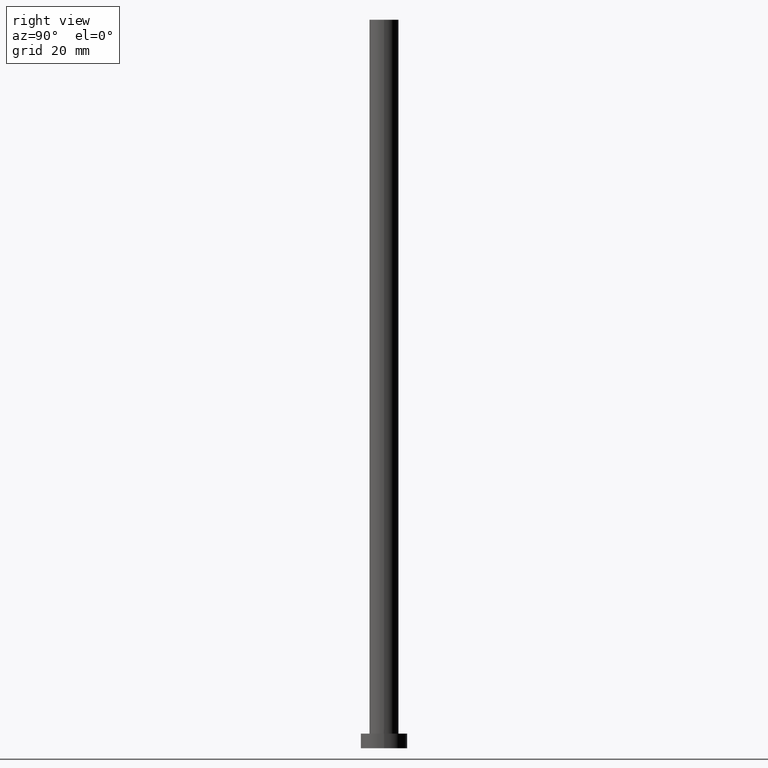
[diagram: clean part render]
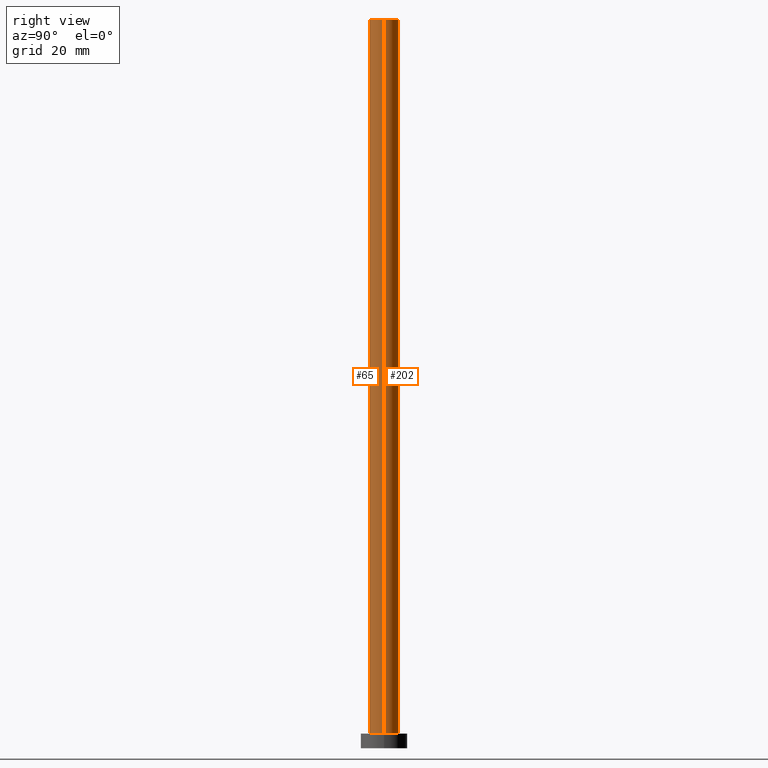
[diagram: same view with one multi-face feature highlighted, each face labeled with its STEP entity id]
A machine part, right view. The highlighted faces form ONE feature: a constant-radius fillet chain: 2 tangent blend faces with common blend radius 5 mm. The faces share edges in the B-rep.
Their STEP definitions:
[1] entity #202 (Cylinder):
#10 = DIRECTION ( 'NONE',  ( -0.000000000000000000, -0.000000000000000000, -1.000000000000000000 ) ) ;
#13 = DIRECTION ( 'NONE',  ( 0.000000000000000000, 0.000000000000000000, 1.000000000000000000 ) ) ;
#14 = CARTESIAN_POINT ( 'NONE',  ( 0.000000000000000000, 0.000000000000000000, 250.0000000000000000 ) ) ;
#21 = VERTEX_POINT ( 'NONE', #106 ) ;
#27 = ORIENTED_EDGE ( 'NONE', *, *, #205, .F. ) ;
#28 = CARTESIAN_POINT ( 'NONE',  ( 0.000000000000000000, 0.000000000000000000, 5.000000000000000000 ) ) ;
#30 = FACE_OUTER_BOUND ( 'NONE', #151, .T. ) ;
#32 = VECTOR ( 'NONE', #152, 1000.000000000000000 ) ;
#34 = CARTESIAN_POINT ( 'NONE',  ( -5.000000000000000000, 0.000000000000000000, 5.000000000000000000 ) ) ;
#35 = CARTESIAN_POINT ( 'NONE',  ( 0.000000000000000000, 0.000000000000000000, 250.0000000000000000 ) ) ;
#36 = AXIS2_PLACEMENT_3D ( 'NONE', #35, #13, #191 ) ;
#49 = CARTESIAN_POINT ( 'NONE',  ( 5.000000000000000000, 6.123233995736766282E-16, 5.000000000000000000 ) ) ;
#59 = ORIENTED_EDGE ( 'NONE', *, *, #198, .F. ) ;
#62 = AXIS2_PLACEMENT_3D ( 'NONE', #28, #110, #250 ) ;
#70 = DIRECTION ( 'NONE',  ( -0.000000000000000000, -0.000000000000000000, -1.000000000000000000 ) ) ;
#76 = CIRCLE ( 'NONE', #36, 5.000000000000000000 ) ;
#81 = ORIENTED_EDGE ( 'NONE', *, *, #230, .T. ) ;
#95 = CARTESIAN_POINT ( 'NONE',  ( -5.000000000000000000, 0.000000000000000000, 250.0000000000000000 ) ) ;
#101 = VECTOR ( 'NONE', #10, 1000.000000000000000 ) ;
#102 = VERTEX_POINT ( 'NONE', #95 ) ;
#106 = CARTESIAN_POINT ( 'NONE',  ( 5.000000000000000000, 6.123233995736766282E-16, 250.0000000000000000 ) ) ;
#110 = DIRECTION ( 'NONE',  ( 0.000000000000000000, 0.000000000000000000, 1.000000000000000000 ) ) ;
#122 = VERTEX_POINT ( 'NONE', #49 ) ;
#136 = CYLINDRICAL_SURFACE ( 'NONE', #149, 5.000000000000000000 ) ;
#149 = AXIS2_PLACEMENT_3D ( 'NONE', #14, #70, #172 ) ;
#151 = EDGE_LOOP ( 'NONE', ( #59, #207, #81, #27 ) ) ;
#152 = DIRECTION ( 'NONE',  ( -0.000000000000000000, -0.000000000000000000, -1.000000000000000000 ) ) ;
#172 = DIRECTION ( 'NONE',  ( -1.000000000000000000, 0.000000000000000000, 0.000000000000000000 ) ) ;
#173 = CARTESIAN_POINT ( 'NONE',  ( -5.000000000000000000, 0.000000000000000000, 250.0000000000000000 ) ) ;
#178 = CIRCLE ( 'NONE', #62, 5.000000000000000000 ) ;
#180 = VERTEX_POINT ( 'NONE', #34 ) ;
#191 = DIRECTION ( 'NONE',  ( 1.000000000000000000, 0.000000000000000000, 0.000000000000000000 ) ) ;
#198 = EDGE_CURVE ( 'NONE', #21, #102, #76, .T. ) ;
#202 = ADVANCED_FACE ( 'NONE', ( #30 ), #136, .T. ) ;
#205 = EDGE_CURVE ( 'NONE', #102, #180, #247, .T. ) ;
#207 = ORIENTED_EDGE ( 'NONE', *, *, #209, .T. ) ;
#209 = EDGE_CURVE ( 'NONE', #21, #122, #227, .T. ) ;
#227 = LINE ( 'NONE', #251, #101 ) ;
#230 = EDGE_CURVE ( 'NONE', #122, #180, #178, .T. ) ;
#247 = LINE ( 'NONE', #173, #32 ) ;
#250 = DIRECTION ( 'NONE',  ( 1.000000000000000000, 0.000000000000000000, 0.000000000000000000 ) ) ;
#251 = CARTESIAN_POINT ( 'NONE',  ( 5.000000000000000000, 6.123233995736766282E-16, 250.0000000000000000 ) ) ;
[2] entity #65 (Cylinder):
#8 = DIRECTION ( 'NONE',  ( -0.000000000000000000, -0.000000000000000000, -1.000000000000000000 ) ) ;
#10 = DIRECTION ( 'NONE',  ( -0.000000000000000000, -0.000000000000000000, -1.000000000000000000 ) ) ;
#21 = VERTEX_POINT ( 'NONE', #106 ) ;
#25 = EDGE_LOOP ( 'NONE', ( #168, #107, #43, #242 ) ) ;
#26 = FACE_OUTER_BOUND ( 'NONE', #25, .T. ) ;
#32 = VECTOR ( 'NONE', #152, 1000.000000000000000 ) ;
#34 = CARTESIAN_POINT ( 'NONE',  ( -5.000000000000000000, 0.000000000000000000, 5.000000000000000000 ) ) ;
#43 = ORIENTED_EDGE ( 'NONE', *, *, #205, .T. ) ;
#47 = EDGE_CURVE ( 'NONE', #102, #21, #222, .T. ) ;
#49 = CARTESIAN_POINT ( 'NONE',  ( 5.000000000000000000, 6.123233995736766282E-16, 5.000000000000000000 ) ) ;
#57 = CYLINDRICAL_SURFACE ( 'NONE', #105, 5.000000000000000000 ) ;
#65 = ADVANCED_FACE ( 'NONE', ( #26 ), #57, .T. ) ;
#66 = DIRECTION ( 'NONE',  ( 0.000000000000000000, 0.000000000000000000, 1.000000000000000000 ) ) ;
#69 = DIRECTION ( 'NONE',  ( 1.000000000000000000, 0.000000000000000000, 0.000000000000000000 ) ) ;
#87 = EDGE_CURVE ( 'NONE', #180, #122, #145, .T. ) ;
#88 = DIRECTION ( 'NONE',  ( 1.000000000000000000, 0.000000000000000000, 0.000000000000000000 ) ) ;
#95 = CARTESIAN_POINT ( 'NONE',  ( -5.000000000000000000, 0.000000000000000000, 250.0000000000000000 ) ) ;
#101 = VECTOR ( 'NONE', #10, 1000.000000000000000 ) ;
#102 = VERTEX_POINT ( 'NONE', #95 ) ;
#105 = AXIS2_PLACEMENT_3D ( 'NONE', #187, #8, #114 ) ;
#106 = CARTESIAN_POINT ( 'NONE',  ( 5.000000000000000000, 6.123233995736766282E-16, 250.0000000000000000 ) ) ;
#107 = ORIENTED_EDGE ( 'NONE', *, *, #47, .F. ) ;
#109 = AXIS2_PLACEMENT_3D ( 'NONE', #182, #240, #88 ) ;
#114 = DIRECTION ( 'NONE',  ( -1.000000000000000000, 0.000000000000000000, 0.000000000000000000 ) ) ;
#122 = VERTEX_POINT ( 'NONE', #49 ) ;
#145 = CIRCLE ( 'NONE', #177, 5.000000000000000000 ) ;
#152 = DIRECTION ( 'NONE',  ( -0.000000000000000000, -0.000000000000000000, -1.000000000000000000 ) ) ;
#156 = CARTESIAN_POINT ( 'NONE',  ( 0.000000000000000000, 0.000000000000000000, 5.000000000000000000 ) ) ;
#168 = ORIENTED_EDGE ( 'NONE', *, *, #209, .F. ) ;
#173 = CARTESIAN_POINT ( 'NONE',  ( -5.000000000000000000, 0.000000000000000000, 250.0000000000000000 ) ) ;
#177 = AXIS2_PLACEMENT_3D ( 'NONE', #156, #66, #69 ) ;
#180 = VERTEX_POINT ( 'NONE', #34 ) ;
#182 = CARTESIAN_POINT ( 'NONE',  ( 0.000000000000000000, 0.000000000000000000, 250.0000000000000000 ) ) ;
#187 = CARTESIAN_POINT ( 'NONE',  ( 0.000000000000000000, 0.000000000000000000, 250.0000000000000000 ) ) ;
#205 = EDGE_CURVE ( 'NONE', #102, #180, #247, .T. ) ;
#209 = EDGE_CURVE ( 'NONE', #21, #122, #227, .T. ) ;
#222 = CIRCLE ( 'NONE', #109, 5.000000000000000000 ) ;
#227 = LINE ( 'NONE', #251, #101 ) ;
#240 = DIRECTION ( 'NONE',  ( 0.000000000000000000, 0.000000000000000000, 1.000000000000000000 ) ) ;
#242 = ORIENTED_EDGE ( 'NONE', *, *, #87, .T. ) ;
#247 = LINE ( 'NONE', #173, #32 ) ;
#251 = CARTESIAN_POINT ( 'NONE',  ( 5.000000000000000000, 6.123233995736766282E-16, 250.0000000000000000 ) ) ;